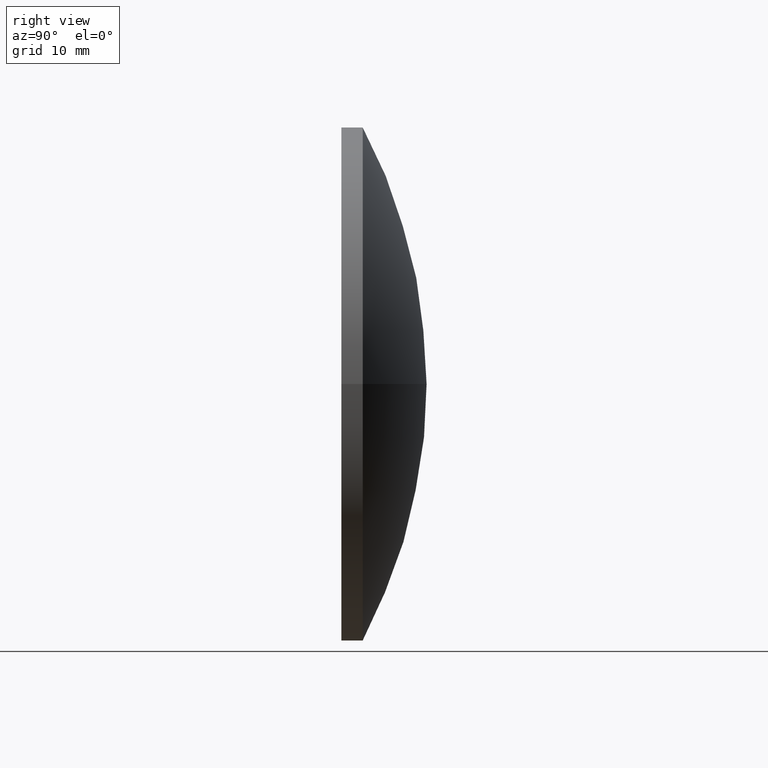
[diagram: clean part render]
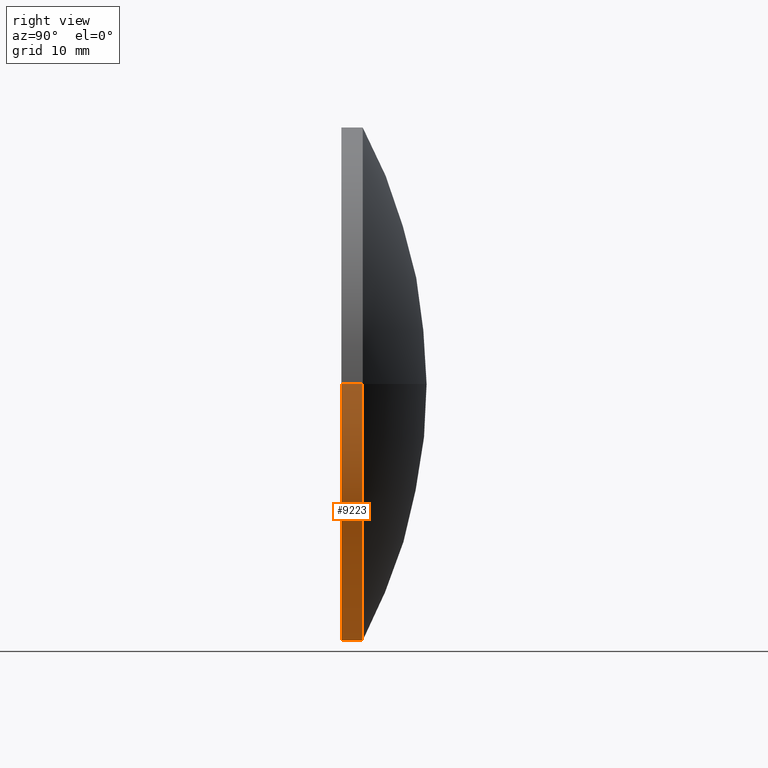
[diagram: same view with one face highlighted and labeled with its STEP entity id]
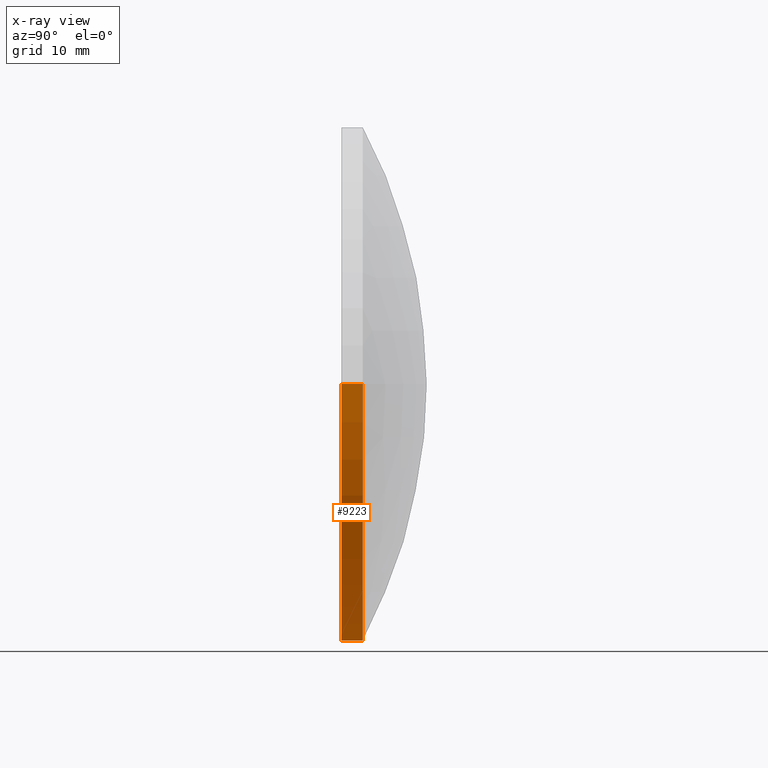
[diagram: x-ray of the same camera — body ghosted, the highlighted face saturated]
A machine part, right view. The second image highlights one B-rep face of the part: STEP entity #9223.
The next image is the same camera in x-ray: the body ghosted, the highlighted face saturated — about 0% of this face is hidden behind the body in this view.
In plain terms, the highlighted cylindrical surface (partial cylindrical patch) has radius 24.15 mm, axis along (-0, -1, -0).
Its self-contained STEP definition (entity closure, byte-faithful):
#261 = ORIENTED_EDGE ( 'NONE', *, *, #5482, .F. ) ;
#391 = CARTESIAN_POINT ( 'NONE',  ( -2.927737000545303800E-014, 2.000000000000164800, 0.0000000000000000000 ) ) ;
#429 = DIRECTION ( 'NONE',  ( -7.319342501363578300E-015, -1.000000000000000000, -0.0000000000000000000 ) ) ;
#623 = CARTESIAN_POINT ( 'NONE',  ( -24.15000000000005900, 2.000000000000341900, 2.957522019940862300E-015 ) ) ;
#987 = DIRECTION ( 'NONE',  ( -7.319342501363578300E-015, -1.000000000000000000, -0.0000000000000000000 ) ) ;
#1241 = DIRECTION ( 'NONE',  ( -7.319342501363578300E-015, -1.000000000000000000, -0.0000000000000000000 ) ) ;
#1289 = CIRCLE ( 'NONE', #2898, 24.15000000000003400 ) ;
#1691 = EDGE_CURVE ( 'NONE', #8151, #3459, #4432, .T. ) ;
#2012 = DIRECTION ( 'NONE',  ( -7.319342501363578300E-015, -1.000000000000000000, -0.0000000000000000000 ) ) ;
#2100 = CARTESIAN_POINT ( 'NONE',  ( -24.15000000000004100, 6.000000000000168800, 2.957522019940862700E-015 ) ) ;
#2195 = VECTOR ( 'NONE', #1241, 1000.000000000000000 ) ;
#2342 = CARTESIAN_POINT ( 'NONE',  ( -4.391605500818014100E-014, 1.734723475976807100E-013, 0.0000000000000000000 ) ) ;
#2508 = LINE ( 'NONE', #2100, #2195 ) ;
#2898 = AXIS2_PLACEMENT_3D ( 'NONE', #391, #429, #12498 ) ;
#3048 = CARTESIAN_POINT ( 'NONE',  ( 0.0000000000000000000, 5.999999999999991100, 0.0000000000000000000 ) ) ;
#3349 = DIRECTION ( 'NONE',  ( -7.319342501363578300E-015, -1.000000000000000000, -0.0000000000000000000 ) ) ;
#3459 = VERTEX_POINT ( 'NONE', #10488 ) ;
#4432 = LINE ( 'NONE', #10865, #9776 ) ;
#5302 = AXIS2_PLACEMENT_3D ( 'NONE', #2342, #3349, #8162 ) ;
#5482 = EDGE_CURVE ( 'NONE', #6641, #3459, #11928, .T. ) ;
#6239 = FACE_OUTER_BOUND ( 'NONE', #11272, .T. ) ;
#6641 = VERTEX_POINT ( 'NONE', #11385 ) ;
#7177 = EDGE_CURVE ( 'NONE', #11141, #8151, #1289, .T. ) ;
#8076 = ORIENTED_EDGE ( 'NONE', *, *, #1691, .T. ) ;
#8151 = VERTEX_POINT ( 'NONE', #11011 ) ;
#8162 = DIRECTION ( 'NONE',  ( 1.000000000000000000, -7.319342501363579900E-015, 0.0000000000000000000 ) ) ;
#8772 = EDGE_CURVE ( 'NONE', #11141, #6641, #2508, .T. ) ;
#9033 = ORIENTED_EDGE ( 'NONE', *, *, #8772, .F. ) ;
#9223 = ADVANCED_FACE ( 'NONE', ( #6239 ), #12838, .T. ) ;
#9776 = VECTOR ( 'NONE', #987, 1000.000000000000000 ) ;
#10003 = DIRECTION ( 'NONE',  ( 1.000000000000000000, -7.326782383007619600E-015, 0.0000000000000000000 ) ) ;
#10488 = CARTESIAN_POINT ( 'NONE',  ( 24.15000000000000200, -3.289773810250057000E-015, 0.0000000000000000000 ) ) ;
#10865 = CARTESIAN_POINT ( 'NONE',  ( 24.15000000000004100, 5.999999999999814400, 0.0000000000000000000 ) ) ;
#11011 = CARTESIAN_POINT ( 'NONE',  ( 24.15000000000000600, 1.999999999999988000, 0.0000000000000000000 ) ) ;
#11141 = VERTEX_POINT ( 'NONE', #623 ) ;
#11272 = EDGE_LOOP ( 'NONE', ( #9033, #11832, #8076, #261 ) ) ;
#11385 = CARTESIAN_POINT ( 'NONE',  ( -24.15000000000009100, 3.502344690056114000E-013, 2.957522019940864600E-015 ) ) ;
#11832 = ORIENTED_EDGE ( 'NONE', *, *, #7177, .T. ) ;
#11928 = CIRCLE ( 'NONE', #5302, 24.15000000000004500 ) ;
#12498 = DIRECTION ( 'NONE',  ( 1.000000000000000000, -7.326782383007622800E-015, 0.0000000000000000000 ) ) ;
#12822 = AXIS2_PLACEMENT_3D ( 'NONE', #3048, #2012, #10003 ) ;
#12838 = CYLINDRICAL_SURFACE ( 'NONE', #12822, 24.15000000000004100 ) ;